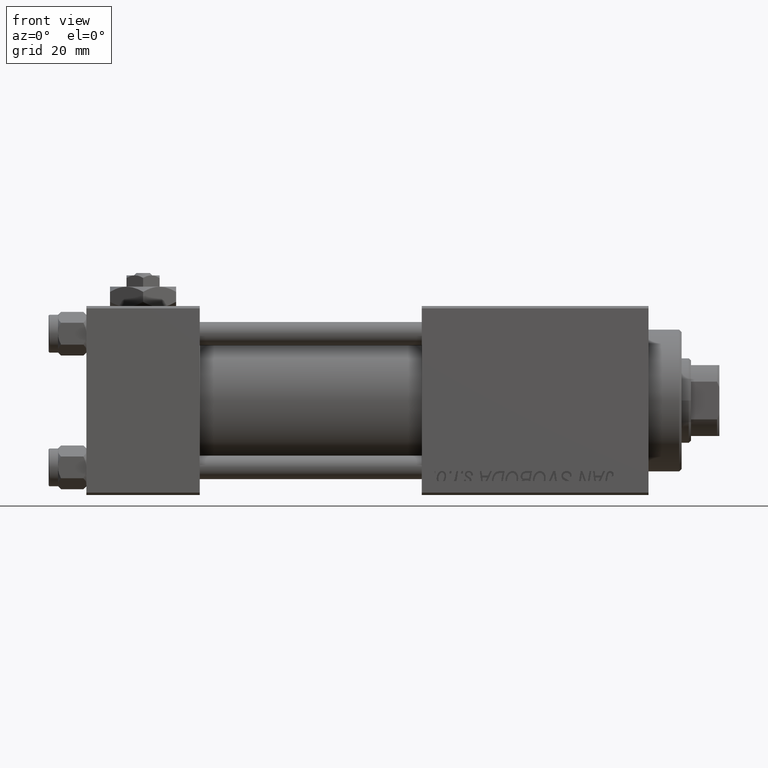
[diagram: clean part render]
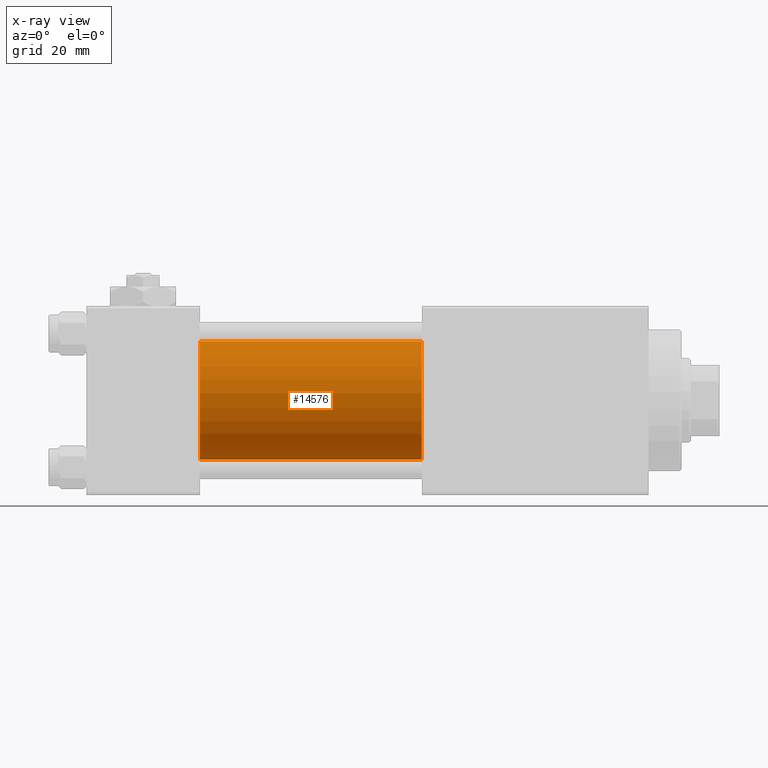
[diagram: x-ray — body ghosted, one internal face saturated and labeled with its STEP entity id]
A machine part, front view, then the same camera in x-ray: the body is ghosted and one INTERNAL B-rep face — a face not visible from any outside direction — is saturated and labeled: STEP entity #14576.
In plain terms, the highlighted cylindrical surface (partial cylindrical patch) has radius 12.5 mm, axis along (-1, -0, -0).
Its self-contained STEP definition (entity closure, byte-faithful):
#1551 = DIRECTION ( 'NONE',  ( -1.000000000000000000, -0.000000000000000000, -0.000000000000000000 ) ) ;
#7084 = VECTOR ( 'NONE', #1551, 1000.000000000000000 ) ;
#7789 = DIRECTION ( 'NONE',  ( 0.000000000000000000, 0.000000000000000000, -1.000000000000000000 ) ) ;
#8054 = CARTESIAN_POINT ( 'NONE',  ( 24.00000000000000000, -2.602085213965210642E-15, 0.000000000000000000 ) ) ;
#8999 = DIRECTION ( 'NONE',  ( 0.000000000000000000, 0.000000000000000000, 1.000000000000000000 ) ) ;
#10096 = EDGE_CURVE ( 'NONE', #49742, #24573, #39193, .T. ) ;
#10767 = LINE ( 'NONE', #30201, #7084 ) ;
#12947 = CARTESIAN_POINT ( 'NONE',  ( 71.00000000000001421, -2.602085213965210642E-15, 0.000000000000000000 ) ) ;
#13514 = AXIS2_PLACEMENT_3D ( 'NONE', #8054, #35643, #7789 ) ;
#14576 = ADVANCED_FACE ( 'NONE', ( #16883 ), #32896, .F. ) ;
#16883 = FACE_OUTER_BOUND ( 'NONE', #34616, .T. ) ;
#17186 = CARTESIAN_POINT ( 'NONE',  ( 71.00000000000001421, -2.602085213965210642E-15, 0.000000000000000000 ) ) ;
#17621 = AXIS2_PLACEMENT_3D ( 'NONE', #17186, #20867, #29005 ) ;
#18501 = CARTESIAN_POINT ( 'NONE',  ( 24.00000000000000000, -2.602085213965210642E-15, 12.49999999999999645 ) ) ;
#19041 = CARTESIAN_POINT ( 'NONE',  ( 71.00000000000001421, -1.071276715031019515E-15, -12.49999999999999645 ) ) ;
#19216 = VERTEX_POINT ( 'NONE', #41233 ) ;
#19467 = EDGE_CURVE ( 'NONE', #48625, #19216, #10767, .T. ) ;
#19660 = ORIENTED_EDGE ( 'NONE', *, *, #10096, .F. ) ;
#20867 = DIRECTION ( 'NONE',  ( 1.000000000000000000, 0.000000000000000000, 0.000000000000000000 ) ) ;
#21158 = AXIS2_PLACEMENT_3D ( 'NONE', #12947, #44963, #8999 ) ;
#23467 = ORIENTED_EDGE ( 'NONE', *, *, #31397, .T. ) ;
#24573 = VERTEX_POINT ( 'NONE', #18501 ) ;
#24749 = ORIENTED_EDGE ( 'NONE', *, *, #37198, .F. ) ;
#28516 = CIRCLE ( 'NONE', #17621, 12.49999999999999645 ) ;
#29005 = DIRECTION ( 'NONE',  ( 0.000000000000000000, 0.000000000000000000, -1.000000000000000000 ) ) ;
#30201 = CARTESIAN_POINT ( 'NONE',  ( 71.00000000000001421, -1.071276715031019515E-15, -12.49999999999999645 ) ) ;
#31397 = EDGE_CURVE ( 'NONE', #49742, #48625, #28516, .T. ) ;
#32896 = CYLINDRICAL_SURFACE ( 'NONE', #21158, 12.49999999999999645 ) ;
#34474 = CARTESIAN_POINT ( 'NONE',  ( 71.00000000000001421, -2.602085213965210642E-15, 12.49999999999999645 ) ) ;
#34616 = EDGE_LOOP ( 'NONE', ( #23467, #46780, #24749, #19660 ) ) ;
#35643 = DIRECTION ( 'NONE',  ( 1.000000000000000000, 0.000000000000000000, 0.000000000000000000 ) ) ;
#36223 = VECTOR ( 'NONE', #47040, 1000.000000000000000 ) ;
#37198 = EDGE_CURVE ( 'NONE', #24573, #19216, #43681, .T. ) ;
#39193 = LINE ( 'NONE', #34474, #36223 ) ;
#40260 = CARTESIAN_POINT ( 'NONE',  ( 71.00000000000001421, -2.602085213965210642E-15, 12.49999999999999645 ) ) ;
#41233 = CARTESIAN_POINT ( 'NONE',  ( 24.00000000000000000, -1.071276715031019515E-15, -12.49999999999999645 ) ) ;
#43681 = CIRCLE ( 'NONE', #13514, 12.49999999999999645 ) ;
#44963 = DIRECTION ( 'NONE',  ( -1.000000000000000000, -0.000000000000000000, -0.000000000000000000 ) ) ;
#46780 = ORIENTED_EDGE ( 'NONE', *, *, #19467, .T. ) ;
#47040 = DIRECTION ( 'NONE',  ( -1.000000000000000000, -0.000000000000000000, -0.000000000000000000 ) ) ;
#48625 = VERTEX_POINT ( 'NONE', #19041 ) ;
#49742 = VERTEX_POINT ( 'NONE', #40260 ) ;